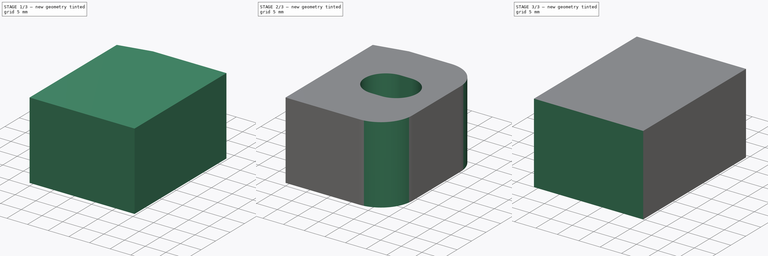
[diagram: build sequence overview — one tinted view per stage of 3, left to right]
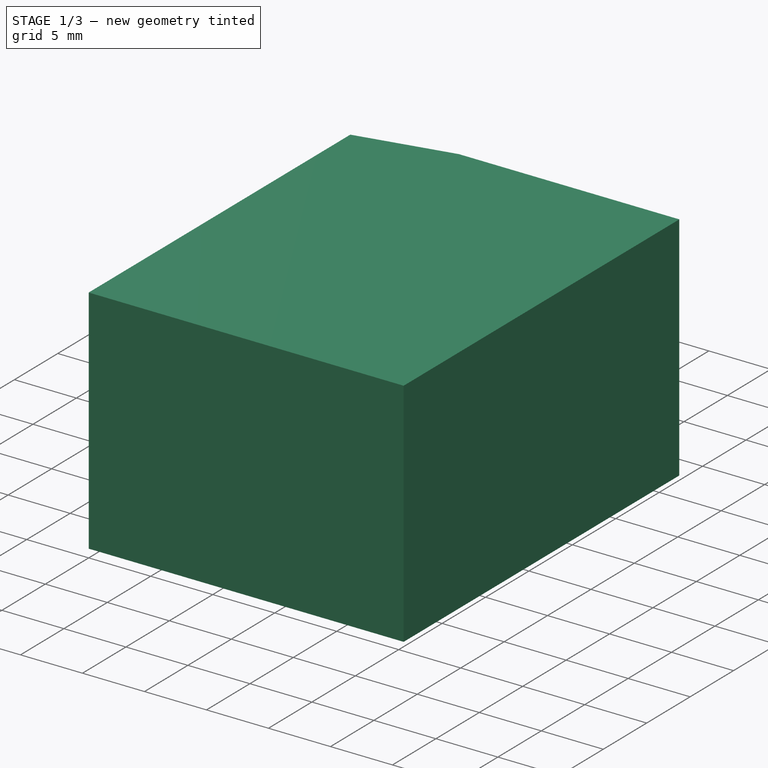
[diagram: stage 1 of 3 — iso view after this stage's code; geometry added in this stage tinted green]
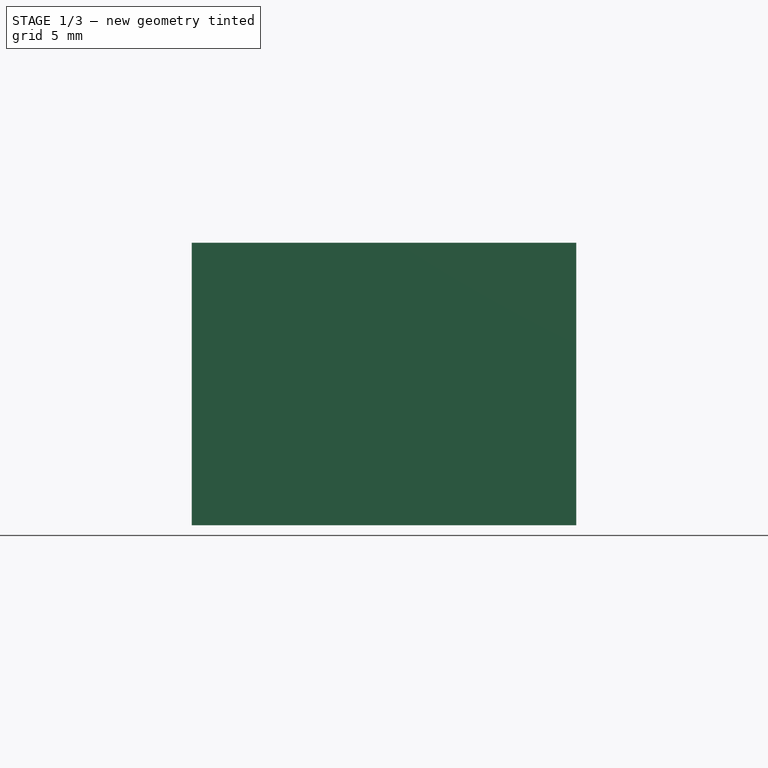
[diagram: stage 1 of 3 — front view after this stage's code; geometry added in this stage tinted green]
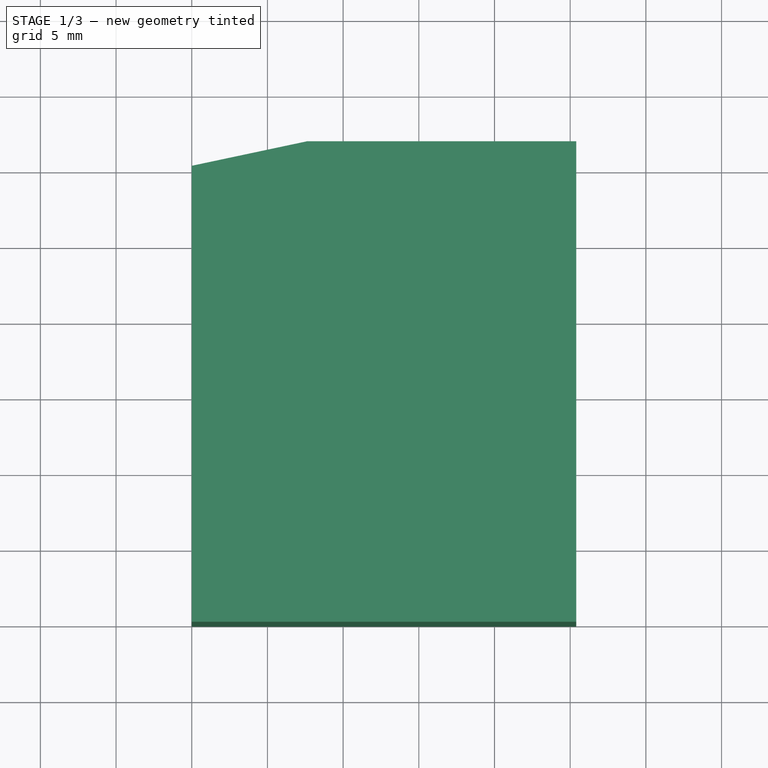
[diagram: stage 1 of 3 — top view after this stage's code; geometry added in this stage tinted green]
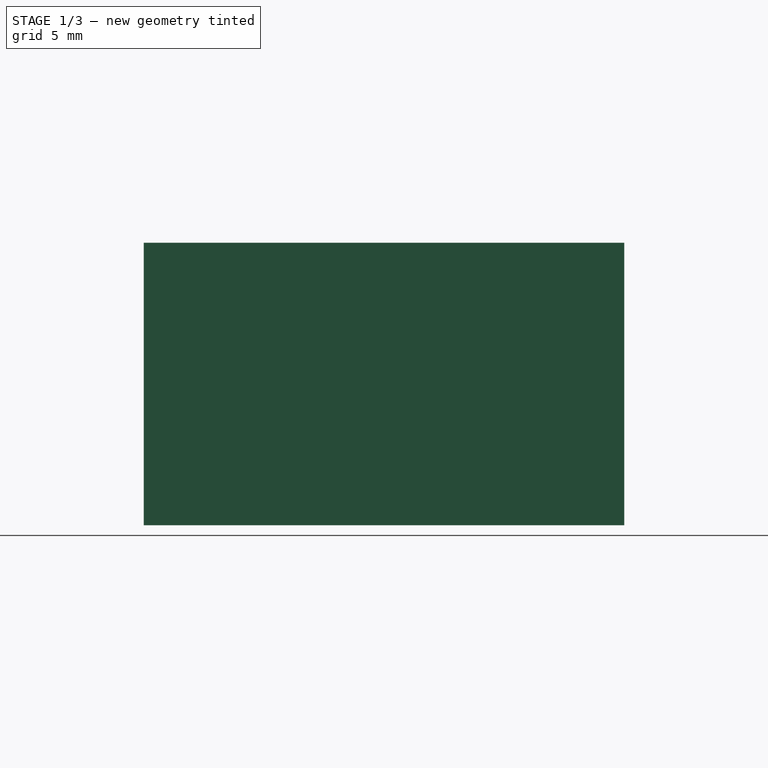
[diagram: stage 1 of 3 — right view after this stage's code; geometry added in this stage tinted green]
FCSTD DOCUMENT  (FreeCAD 0.17R13515 (Git))
Label: stopper
License: All rights reserved
LicenseURL: http://en.wikipedia.org/wiki/All_rights_reserved
objects: Path::FeaturePython×4, Sketcher::SketchObject×3, PartDesign::Pocket×2, Part::FeaturePython×2, PartDesign::Pad×1, PartDesign::Fillet×1, PartDesign::Body×1, App::FeaturePython×1, Path::FeatureCompoundPython×1
note: 15 computed .brp shape members not serialized (recipe doc carries the construction recipe); baked Part::Feature solids carry a one-line shape summary decoded from their .brp

FEATURE [Sketcher::SketchObject] Sketch
  MapMode = 5
  Support = -> [XY_Plane]
  sketch-geometry (4):
    g0: LineSegment StartX=0 StartY=0 StartZ=0 EndX=25.4 EndY=0 EndZ=0
    g1: LineSegment StartX=25.4 StartY=0 StartZ=0 EndX=25.4 EndY=31.75 EndZ=0
    g2: LineSegment StartX=25.4 StartY=31.75 StartZ=0 EndX=0 EndY=31.75 EndZ=0
    g3: LineSegment StartX=0 StartY=31.75 StartZ=0 EndX=0 EndY=0 EndZ=0
  constraints (11):
    c: Coincident(g0,g1)
    c: Coincident(g1,g2)
    c: Coincident(g2,g3)
    c: Coincident(g3,g0)
    c: Horizontal(g0)
    c: Horizontal(g2)
    c: Vertical(g1)
    c: Vertical(g3)
    c: Coincident(g0,g-1)
    c: DistanceX(g1) = 25.4
    c: DistanceY(g1) = 31.75
FEATURE [PartDesign::Pad] Pad
  Length = 18.669
  Length2 = 100
  Profile = -> Sketch
  Reversed = true
  Type = 0
FEATURE [Sketcher::SketchObject] Sketch001
  ExternalGeometry = -> [Pad]
  MapMode = 5
  Support = -> [Pad]
  sketch-geometry (4):
    g0: LineSegment [constr] StartX=18.542 StartY=31.75 StartZ=0 EndX=18.542 EndY=0 EndZ=0
    g1: LineSegment StartX=7.62 StartY=31.75 StartZ=0 EndX=0 EndY=30.1303 EndZ=0
    g2: LineSegment StartX=0 StartY=30.1303 StartZ=0 EndX=0 EndY=31.75 EndZ=0
    g3: LineSegment StartX=0 StartY=31.75 StartZ=0 EndX=7.62 EndY=31.75 EndZ=0
  constraints (13):
    c: PointOnObject(g0,g-3)
    c: PointOnObject(g0,g-1)
    c: Vertical(g0)
    c: PointOnObject(g1,g-3)
    c: PointOnObject(g1,g-2)
    c: Coincident(g1,g2)
    c: PointOnObject(g2,g-2)
    c: Coincident(g2,g3)
    c: Coincident(g3,g1)
    c: Coincident(g2,g-3)
    c: Angle(g3,g1) = 0.20944
    c: DistanceX(g2,g0) = 18.542
    c: DistanceX(g3,g3) = 7.62
FEATURE [PartDesign::Pocket] Pocket
  BaseFeature = -> Pad
  Length = 4.99999
  Length2 = 100
  Profile = -> Sketch001
  Type = 1
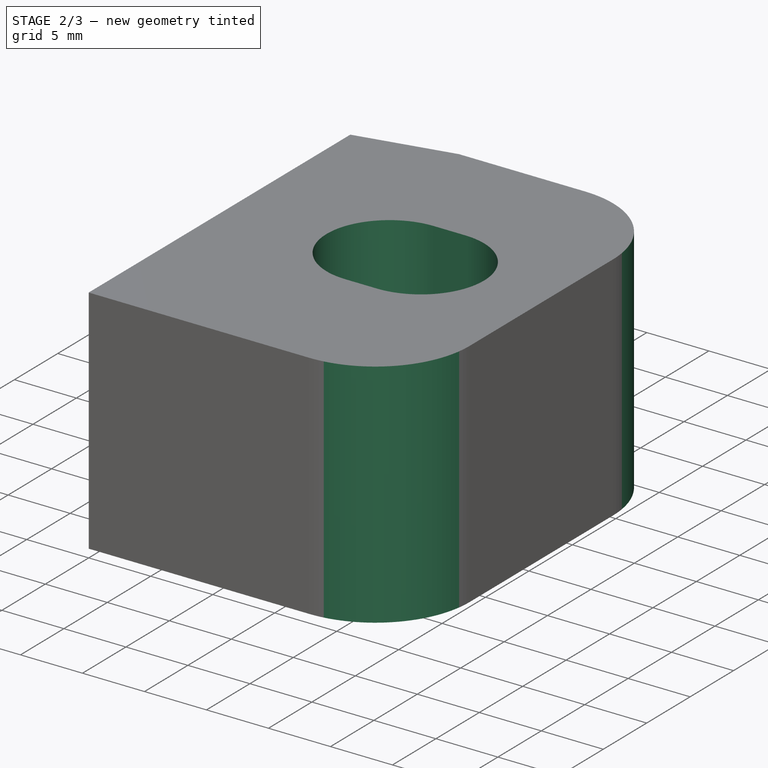
[diagram: stage 2 of 3 — iso view after this stage's code; geometry added in this stage tinted green]
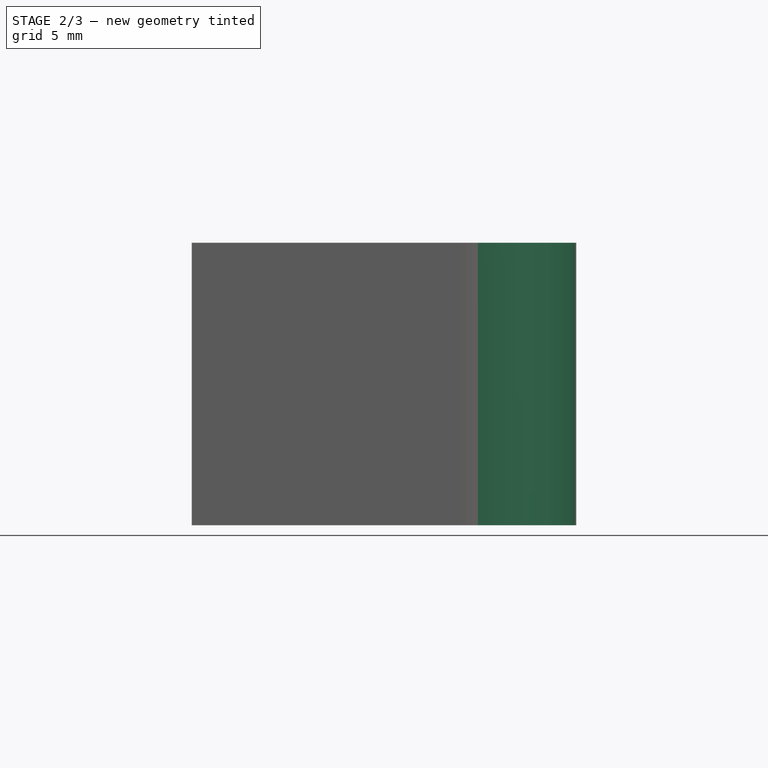
[diagram: stage 2 of 3 — front view after this stage's code; geometry added in this stage tinted green]
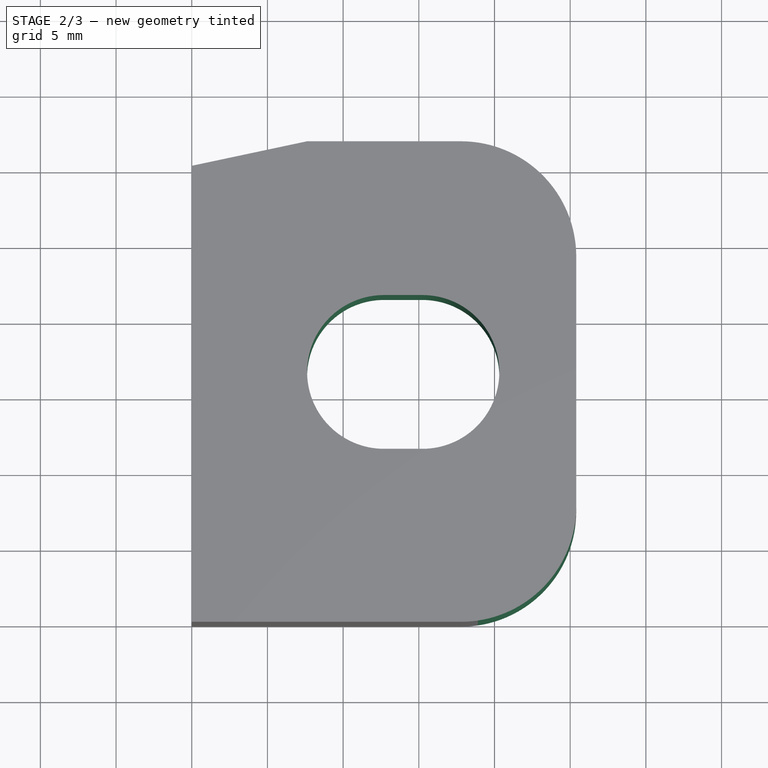
[diagram: stage 2 of 3 — top view after this stage's code; geometry added in this stage tinted green]
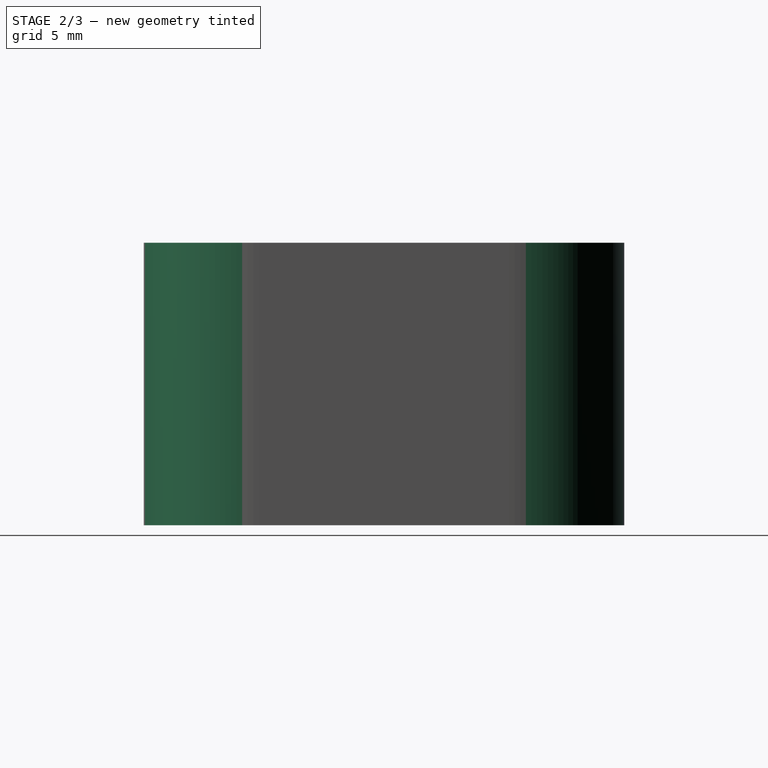
[diagram: stage 2 of 3 — right view after this stage's code; geometry added in this stage tinted green]
FEATURE [PartDesign::Fillet] Fillet
  Base = -> Pocket [Edge8,Edge2]
  BaseFeature = -> Pocket
  Radius = 7.62
FEATURE [Sketcher::SketchObject] Sketch002
  MapMode = 5
  Support = -> [Fillet]
  sketch-geometry (4):
    g0: ArcOfCircle CenterX=12.7 CenterY=16.51 CenterZ=0 NormalX=0 NormalY=0 NormalZ=1 AngleXU=0 Radius=5.08 StartAngle=1.5708 EndAngle=4.71239
    g1: ArcOfCircle CenterX=15.24 CenterY=16.51 CenterZ=0 NormalX=0 NormalY=0 NormalZ=1 AngleXU=0 Radius=5.08 StartAngle=4.71239 EndAngle=7.85398
    g2: LineSegment StartX=12.7 StartY=11.43 StartZ=0 EndX=15.24 EndY=11.43 EndZ=0
    g3: LineSegment StartX=12.7 StartY=21.59 StartZ=0 EndX=15.24 EndY=21.59 EndZ=0
  constraints (10):
    c: Tangent(g0,g3) = 1.5708
    c: Tangent(g0,g2) = -1.5708
    c: Tangent(g2,g1) = -1.5708
    c: Tangent(g3,g1) = 1.5708
    c: Horizontal(g2)
    c: Equal(g0,g1)
    c: DistanceX(g0) = 12.7
    c: DistanceY(g0) = 16.51
    c: DistanceX(g0,g1) = 2.54
    c: Radius(g1) = 5.08
FEATURE [PartDesign::Pocket] Pocket001
  BaseFeature = -> Fillet
  Length = 4.99999
  Length2 = 100
  Profile = -> Sketch002
  Type = 1
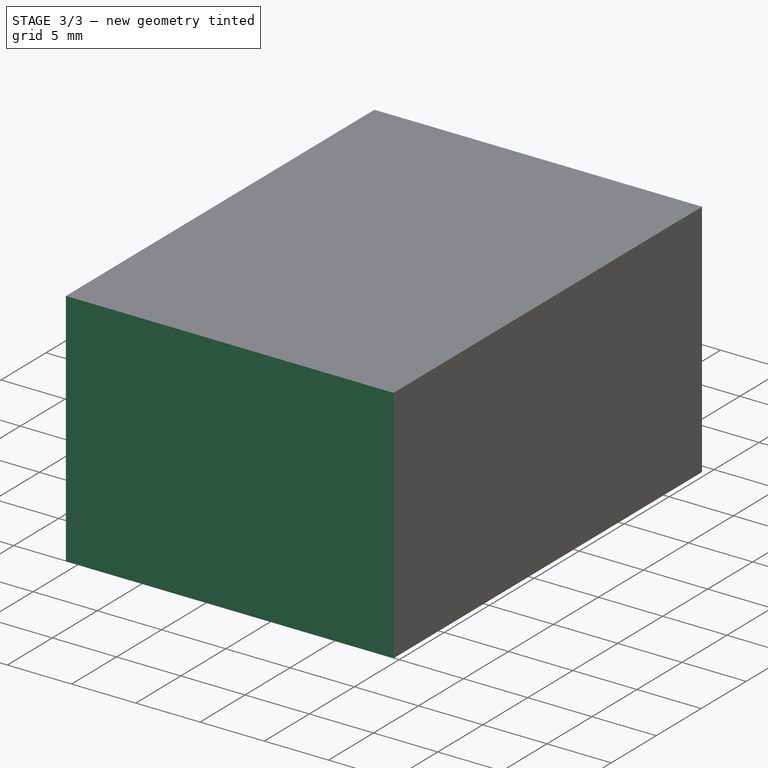
[diagram: stage 3 of 3 — iso view after this stage's code; geometry added in this stage tinted green]
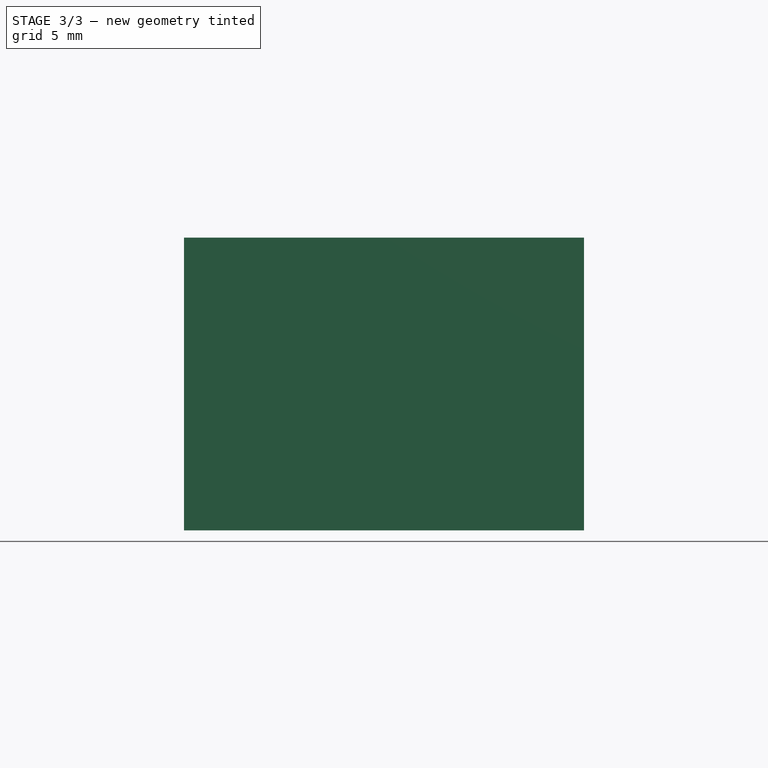
[diagram: stage 3 of 3 — front view after this stage's code; geometry added in this stage tinted green]
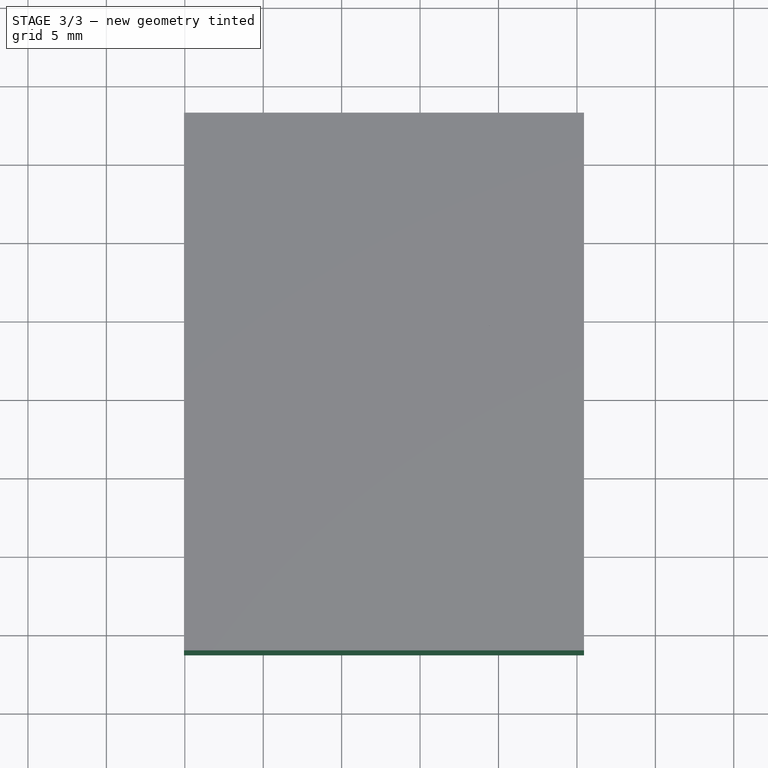
[diagram: stage 3 of 3 — top view after this stage's code; geometry added in this stage tinted green]
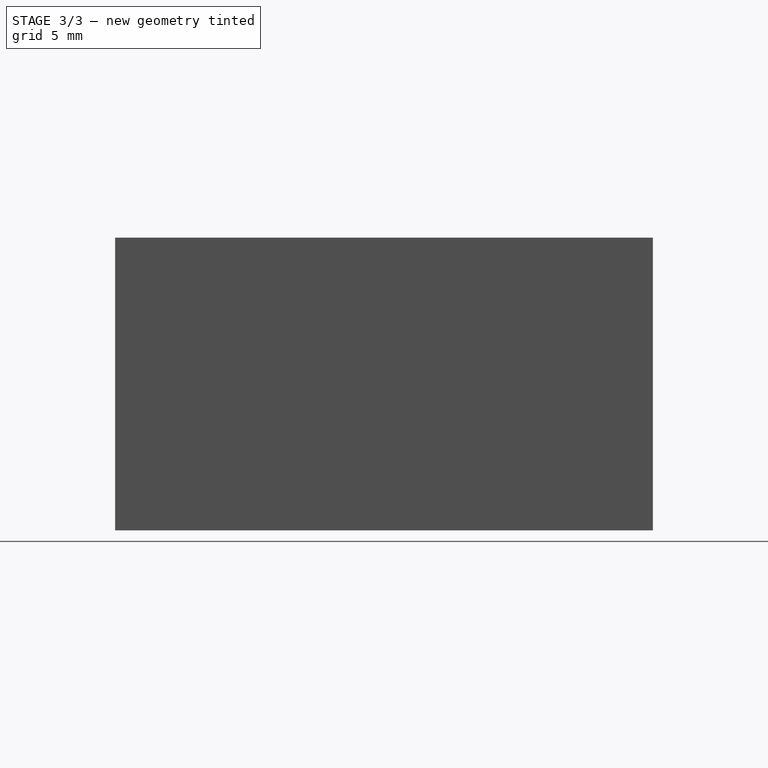
[diagram: stage 3 of 3 — right view after this stage's code; geometry added in this stage tinted green]
FEATURE [PartDesign::Body] Body
  Group = -> [Sketch,Pad,Sketch001,Pocket,Fillet,Sketch002,Pocket001]
  Origin = -> Origin
  Tip = -> Pocket001
FEATURE [App::FeaturePython] SetupSheet  # Path/CAM operation (typed FeaturePython)
  ClearanceHeightExpression = StartDepth+SetupSheet.ClearanceHeightOffset
  ClearanceHeightOffset = 1.27
  FinalDepthExpression = -0.80 in
  HorizRapid = 25.4
  SafeHeightExpression = StartDepth+SetupSheet.SafeHeightOffset
  SafeHeightOffset = 1.27
  StartDepthExpression = 0.0 in
  StepDownExpression = 0.2 in
  VertRapid = 12.7
FEATURE [Part::FeaturePython] Clone  label="Base-Body"  # Draft clone (typed FeaturePython)
  AttacherType = Attacher::AttachEngine3D
  Fuse = false
  Objects = -> [Body]
  PathResource = Base
  Scale = (1,1,1)
FEATURE [Part::FeaturePython] Stock  # WARN: FeaturePython — macro-defined, semantics opaque (R4)
  Base = -> Body
  ExtXneg = 0.0500126
  ExtXpos = 0.0500126
  ExtYneg = 1.27
  ExtYpos = 1.27
  ExtZneg = 0
  ExtZpos = 0
  StockType = FromBase
FEATURE [Path::FeaturePython] T3__Robynbit  label="T3: Robynbit"  # Path/CAM operation (typed FeaturePython)
  HorizFeed = 25.4
  HorizRapid = 25.4
  SpindleDir = 0
  SpindleSpeed = 0
  ToolNumber = 3
  VertFeed = 12.7
  VertRapid = 12.7
  expr: HorizRapid = SetupSheet.HorizRapid
  expr: VertRapid = SetupSheet.VertRapid
FEATURE [Path::FeaturePython] Pocket_Shape  # Path/CAM operation (typed FeaturePython)
  Active = true
  AreaParams:
    OpenMode = 0
    Angle = 45.0
    MinArcPoints = 4
    Coplanar = 0
    Tolerance = 1e-07
    CleanDistance = 0.0
    PocketExtraOffset = 0.0
    RoundPrecision = 0.0
    AngleShift = 0.0
    SubjectFill = 0
    PocketMode = 2
    Simplify = False
    SectionTolerance = 1e-06
    MaxArcPoints = 100
    Offset = 0.0
    Accuracy = 0.0100076
    PocketStepover = 3.175
    ClipFill = 0
    ToolRadius = 3.175
    Outline = False
    ClipperScale = 10000000.0
    FromCenter = True
    Explode = False
    EndType = 0
    Shift = 0.0
    ExtraPass = 0
    Project = False
    JoinType = 0
    Thicken = False
    Stepdown = 1.0
    SectionMode = 2
    MiterLimit = 2.0
    Deflection = 0.01
    Reorient = True
    FitArcs = True
    SectionCount = -1
    SectionOffset = 0.0
    Stepover = 0.0
    Unit = 1.0
    Fill = 0
  Base = -> [Clone]
  ClearanceHeight = 1.27
  CutMode = 0
  ExtraOffset = 0
  FinalDepth = -20.828
  FinishDepth = 0
  KeepToolDown = false
  MinTravel = false
  OffsetPattern = 1
  OpFinalDepth = -18.669
  OpStartDepth = 0
  OpToolDiameter = 6.35
  PathParams = {'resume_height': 1.27, 'feedrate': 25.4, 'verbose': True, 'orientation': 1, 'return_end': True, 'preamble': False, 'retraction': 1.27, 'feedrate_v': 12.7}
  SafeHeight = 1.27
  StartAt = 0
  StartDepth = 0
  StartPoint = (0,0,0)
  StepDown = 5.08
  StepOver = 50
  ToolController = -> T3__Robynbit
  UseStartPoint = false
  ZigZagAngle = 45
  expr: ClearanceHeight = StartDepth + SetupSheet.ClearanceHeightOffset
  expr: SafeHeight = StartDepth + SetupSheet.SafeHeightOffset
  expr: StepDown = 0.20000000000000001in
  expr: FinalDepth = -0.81999999999999995in
  expr: StartDepth = 0in
FEATURE [Path::FeaturePython] Contour  # Path/CAM operation (typed FeaturePython)
  Active = true
  AreaParams:
    OpenMode = 0
    Angle = 45.0
    MinArcPoints = 4
    Coplanar = 2
    Tolerance = 1e-07
    CleanDistance = 0.0
    PocketExtraOffset = 0.0
    RoundPrecision = 0.0
    AngleShift = 0.0
    SubjectFill = 0
    PocketMode = 0
    Simplify = False
    SectionTolerance = 1e-06
    MaxArcPoints = 100
    Offset = 3.175
    Accuracy = 0.0100076
    PocketStepover = 0.0
    ClipFill = 0
    ToolRadius = 1.0
    Outline = False
    ClipperScale = 10000000.0
    FromCenter = False
    Explode = False
    EndType = 0
    Shift = 0.0
    ExtraPass = 0
    Project = False
    JoinType = 0
    Thicken = False
    Stepdown = 1.0
    SectionMode = 2
    MiterLimit = 2.0
    Deflection = 0.01
    Reorient = True
    FitArcs = True
    SectionCount = -1
    SectionOffset = 0.0
    Stepover = 0.0
    Unit = 1.0
    Fill = 0
  ClearanceHeight = 1.27
  Direction = 0
  FinalDepth = -20.32
  JoinType = 0
  MiterLimit = 0.1
  OffsetExtra = 0
  OpFinalDepth = -18.669
  OpStartDepth = 0
  OpToolDiameter = 6.35
  PathParams = {'resume_height': 1.27, 'feedrate': 25.4, 'verbose': True, 'orientation': 1, 'return_end': True, 'preamble': False, 'retraction': 1.27, 'feedrate_v': 12.7}
  SafeHeight = 1.27
  Side = 0
  StartDepth = 0
  StartPoint = (0,0,0)
  StepDown = 5.08
  ToolController = -> T3__Robynbit
  UseComp = true
  UseStartPoint = false
  expr: ClearanceHeight = StartDepth + SetupSheet.ClearanceHeightOffset
  expr: SafeHeight = StartDepth + SetupSheet.SafeHeightOffset
  expr: StepDown = 0.20000000000000001in
  expr: FinalDepth = -0.80000000000000004in
  expr: StartDepth = 0in
FEATURE [Path::FeatureCompoundPython] Operations  # Path/CAM operation (typed FeaturePython)
  Group = -> [Pocket_Shape,Contour]
  UsePlacements = false
FEATURE [Path::FeaturePython] Job  # Path/CAM operation (typed FeaturePython)
  Base = -> Clone
  GeometryTolerance = 0.0100076
  Operations = -> Operations
  PostProcessor = 5
  SetupSheet = -> SetupSheet
  Stock = -> Stock
  ToolController = -> [T3__Robynbit]
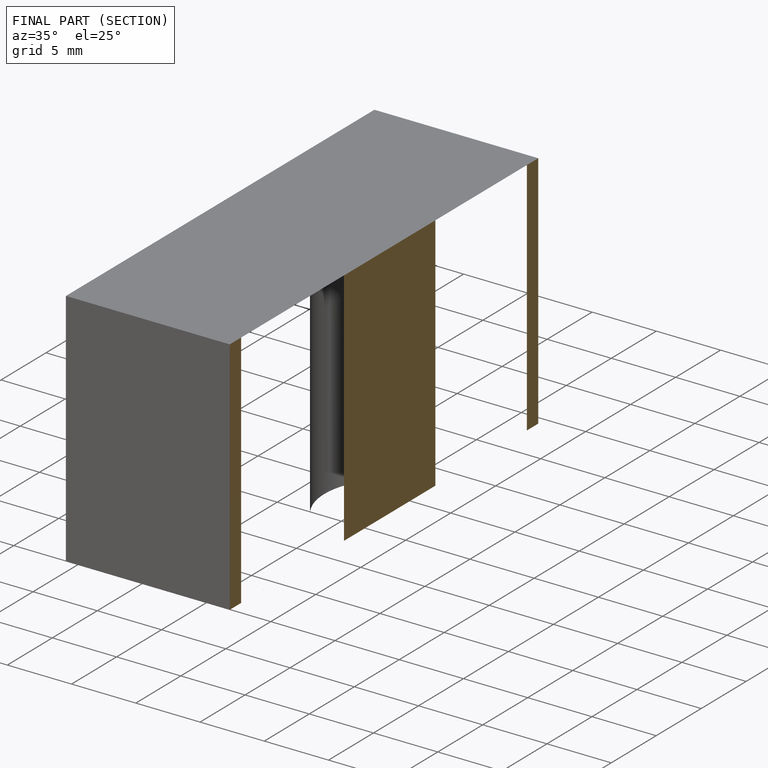
[diagram: finished part — half-section view (interior)]
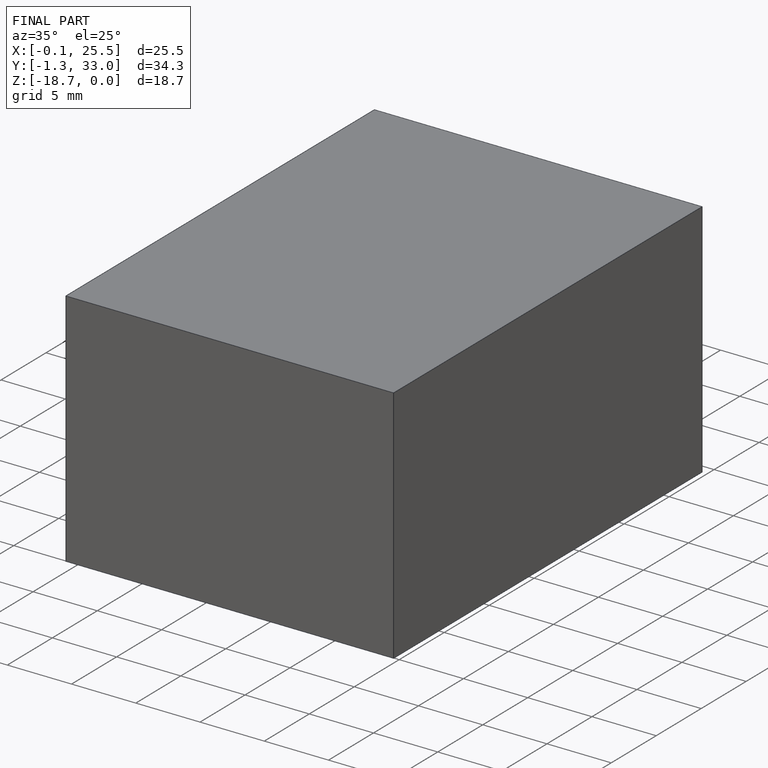
[diagram: finished part — iso view with bounding-box wireframe]
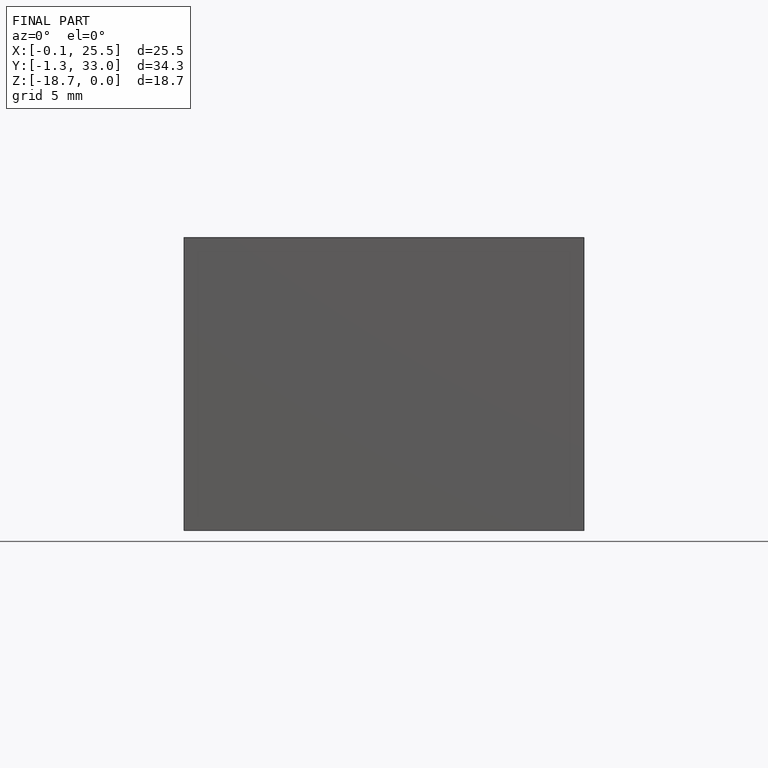
[diagram: finished part — front view with bounding-box wireframe]
